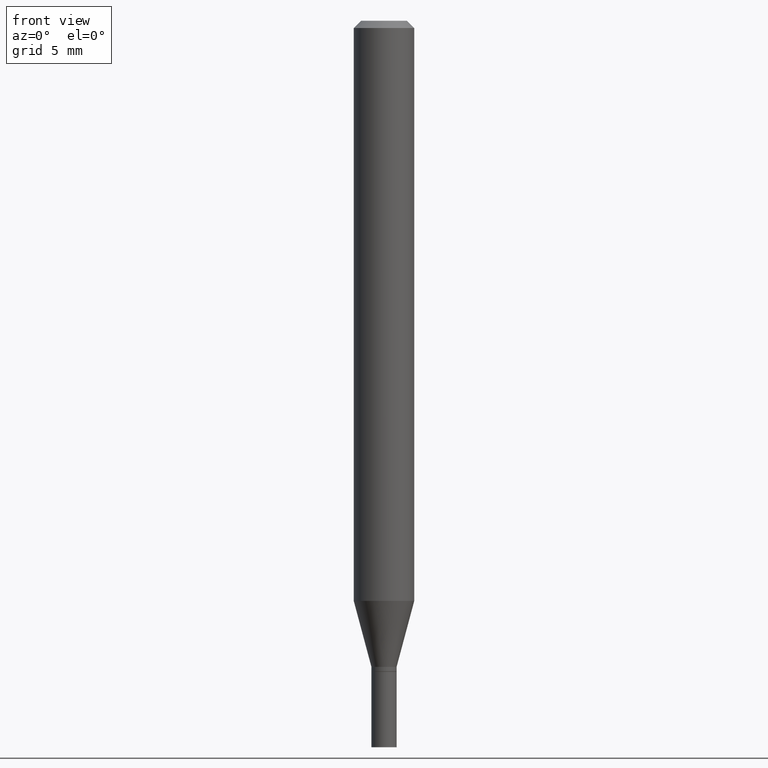
[diagram: clean part render]
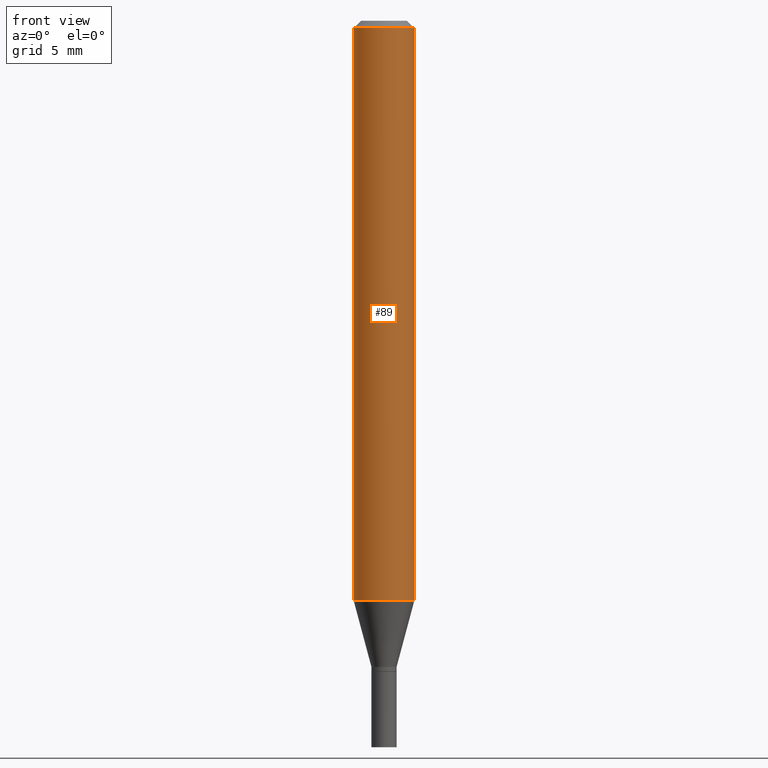
[diagram: same view with one face highlighted and labeled with its STEP entity id]
A machine part, front view. The second image highlights one B-rep face of the part: STEP entity #89.
In plain terms, the highlighted cylindrical surface (edge-blend (fillet) strip) has radius 1.5875 mm, axis along (-0, 0, 1).
Its self-contained STEP definition (entity closure, byte-faithful):
#8 = DIRECTION ( 'NONE',  ( -2.445468806185136597E-29, 3.491481338843145583E-15, 1.000000000000000000 ) ) ;
#30 = ORIENTED_EDGE ( 'NONE', *, *, #434, .T. ) ;
#53 = VECTOR ( 'NONE', #350, 39.37007874015748143 ) ;
#58 = LINE ( 'NONE', #309, #394 ) ;
#77 = AXIS2_PLACEMENT_3D ( 'NONE', #197, #323, #294 ) ;
#79 = LINE ( 'NONE', #421, #53 ) ;
#87 = CARTESIAN_POINT ( 'NONE',  ( 3.668203209277705088E-31, -5.237222008264718399E-17, -0.01499999999999999944 ) ) ;
#89 = ADVANCED_FACE ( 'NONE', ( #203 ), #463, .T. ) ;
#91 = CARTESIAN_POINT ( 'NONE',  ( 2.929133982546189833E-29, -4.182027026132951363E-15, -1.197780145523736017 ) ) ;
#107 = VERTEX_POINT ( 'NONE', #431 ) ;
#125 = EDGE_CURVE ( 'NONE', #353, #282, #79, .T. ) ;
#142 = EDGE_CURVE ( 'NONE', #361, #107, #58, .T. ) ;
#148 = DIRECTION ( 'NONE',  ( 1.000000000000000000, -6.982962677686270655E-15, 0.000000000000000000 ) ) ;
#171 = CIRCLE ( 'NONE', #182, 0.06250000000000000000 ) ;
#176 = ORIENTED_EDGE ( 'NONE', *, *, #125, .T. ) ;
#182 = AXIS2_PLACEMENT_3D ( 'NONE', #87, #240, #366 ) ;
#195 = EDGE_CURVE ( 'NONE', #107, #282, #171, .T. ) ;
#197 = CARTESIAN_POINT ( 'NONE',  ( 0.000000000000000000, 0.000000000000000000, 0.000000000000000000 ) ) ;
#203 = FACE_OUTER_BOUND ( 'NONE', #269, .T. ) ;
#240 = DIRECTION ( 'NONE',  ( -2.445468806185136597E-29, 3.491481338843145583E-15, 1.000000000000000000 ) ) ;
#269 = EDGE_LOOP ( 'NONE', ( #410, #30, #176, #397 ) ) ;
#282 = VERTEX_POINT ( 'NONE', #375 ) ;
#294 = DIRECTION ( 'NONE',  ( 1.000000000000000000, -6.982962677686266711E-15, 4.876176775795935793E-29 ) ) ;
#309 = CARTESIAN_POINT ( 'NONE',  ( -0.06250000000000000000, 4.440892098500626162E-16, -3.074334431409316114E-30 ) ) ;
#323 = DIRECTION ( 'NONE',  ( -2.445468806185136597E-29, 3.491481338843145583E-15, 1.000000000000000000 ) ) ;
#350 = DIRECTION ( 'NONE',  ( -2.445468806185136877E-29, 3.491481338843145188E-15, 1.000000000000000000 ) ) ;
#353 = VERTEX_POINT ( 'NONE', #401 ) ;
#361 = VERTEX_POINT ( 'NONE', #464 ) ;
#366 = DIRECTION ( 'NONE',  ( 1.000000000000000000, -6.982962677686266711E-15, 0.000000000000000000 ) ) ;
#375 = CARTESIAN_POINT ( 'NONE',  ( 0.06250000000000000000, -4.888073874380388472E-16, -0.01499999999999999944 ) ) ;
#394 = VECTOR ( 'NONE', #413, 39.37007874015748143 ) ;
#397 = ORIENTED_EDGE ( 'NONE', *, *, #195, .F. ) ;
#401 = CARTESIAN_POINT ( 'NONE',  ( 0.06250000000000000000, -4.618462193488343821E-15, -1.197780145523736017 ) ) ;
#410 = ORIENTED_EDGE ( 'NONE', *, *, #142, .F. ) ;
#413 = DIRECTION ( 'NONE',  ( -2.445468806185136877E-29, 3.491481338843145188E-15, 1.000000000000000000 ) ) ;
#417 = AXIS2_PLACEMENT_3D ( 'NONE', #91, #8, #148 ) ;
#421 = CARTESIAN_POINT ( 'NONE',  ( 0.06250000000000000000, -4.364351673553916694E-16, 3.047610484872459871E-30 ) ) ;
#431 = CARTESIAN_POINT ( 'NONE',  ( -0.06250000000000000000, -1.673110413257736802E-15, -0.01499999999999999944 ) ) ;
#434 = EDGE_CURVE ( 'NONE', #361, #353, #437, .T. ) ;
#437 = CIRCLE ( 'NONE', #417, 0.06250000000000000000 ) ;
#463 = CYLINDRICAL_SURFACE ( 'NONE', #77, 0.06250000000000000000 ) ;
#464 = CARTESIAN_POINT ( 'NONE',  ( -0.06250000000000000000, -3.737937816282888747E-15, -1.197780145523736017 ) ) ;